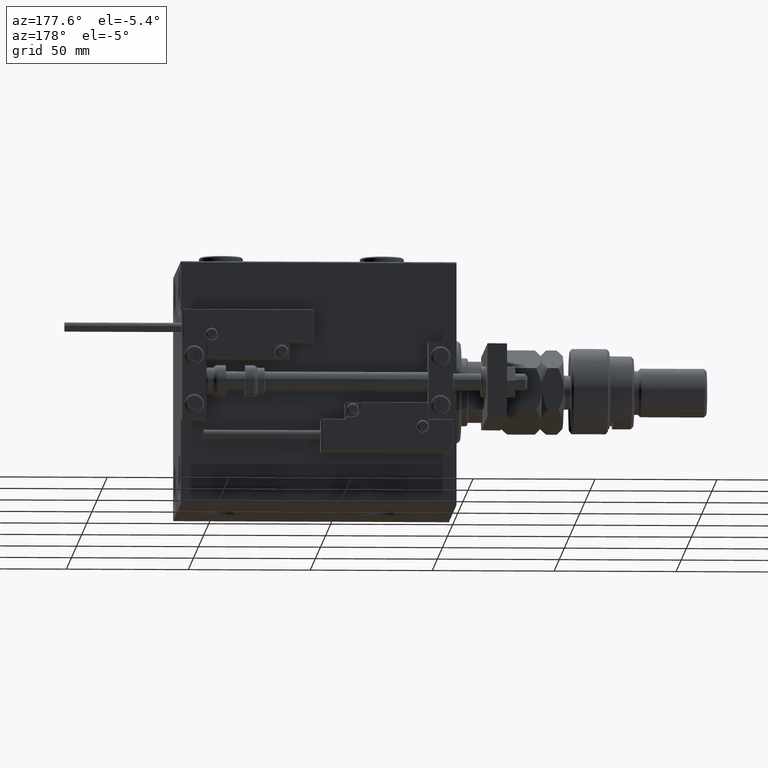
[diagram: clean part render]
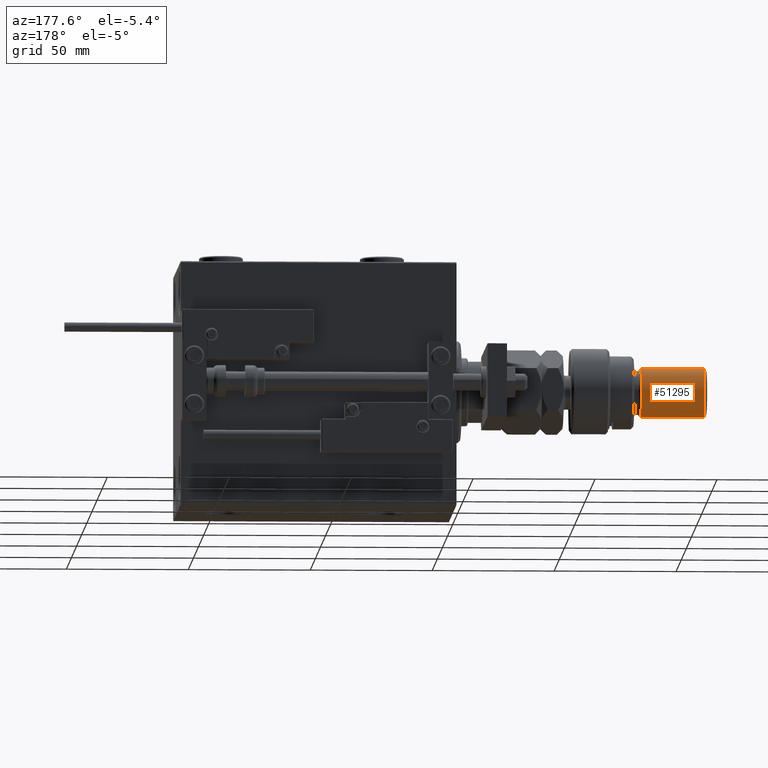
[diagram: same view with one face highlighted and labeled with its STEP entity id]
A machine part, auxiliary view. The second image highlights one B-rep face of the part: STEP entity #51295.
In plain terms, the highlighted cylindrical surface (edge-blend (fillet) strip) has radius 10 mm, axis along (1, -0, -0).
Its self-contained STEP definition (entity closure, byte-faithful):
#2074 = EDGE_CURVE ( 'NONE', #4278, #51081, #43753, .T. ) ;
#3403 = FACE_OUTER_BOUND ( 'NONE', #25336, .T. ) ;
#4278 = VERTEX_POINT ( 'NONE', #34699 ) ;
#4338 = LINE ( 'NONE', #16215, #25374 ) ;
#4911 = EDGE_CURVE ( 'NONE', #7088, #51081, #4338, .T. ) ;
#5986 = CARTESIAN_POINT ( 'NONE',  ( 0.000000000000000000, 0.000000000000000000, 56.00000000000000711 ) ) ;
#7088 = VERTEX_POINT ( 'NONE', #32708 ) ;
#8337 = CARTESIAN_POINT ( 'NONE',  ( 10.00000000000000000, 1.224646799147353256E-15, 54.99999999999998579 ) ) ;
#11679 = DIRECTION ( 'NONE',  ( -0.000000000000000000, -0.000000000000000000, -1.000000000000000000 ) ) ;
#12603 = CARTESIAN_POINT ( 'NONE',  ( -10.00000000000000000, 0.000000000000000000, 29.00000000000000711 ) ) ;
#16042 = LINE ( 'NONE', #41649, #18370 ) ;
#16215 = CARTESIAN_POINT ( 'NONE',  ( -10.00000000000000000, 0.000000000000000000, 56.00000000000000711 ) ) ;
#16744 = ORIENTED_EDGE ( 'NONE', *, *, #2074, .T. ) ;
#17647 = CARTESIAN_POINT ( 'NONE',  ( 0.000000000000000000, 0.000000000000000000, 29.00000000000000711 ) ) ;
#18370 = VECTOR ( 'NONE', #20430, 1000.000000000000000 ) ;
#19088 = AXIS2_PLACEMENT_3D ( 'NONE', #17647, #26199, #43001 ) ;
#20430 = DIRECTION ( 'NONE',  ( -0.000000000000000000, -0.000000000000000000, -1.000000000000000000 ) ) ;
#22010 = DIRECTION ( 'NONE',  ( 0.000000000000000000, 0.000000000000000000, -1.000000000000000000 ) ) ;
#24612 = AXIS2_PLACEMENT_3D ( 'NONE', #52052, #22010, #38818 ) ;
#25336 = EDGE_LOOP ( 'NONE', ( #31151, #34380, #16744, #29497 ) ) ;
#25374 = VECTOR ( 'NONE', #42086, 1000.000000000000000 ) ;
#26199 = DIRECTION ( 'NONE',  ( -0.000000000000000000, -0.000000000000000000, 1.000000000000000000 ) ) ;
#29497 = ORIENTED_EDGE ( 'NONE', *, *, #4911, .F. ) ;
#30757 = CIRCLE ( 'NONE', #24612, 10.00000000000000000 ) ;
#31151 = ORIENTED_EDGE ( 'NONE', *, *, #39011, .T. ) ;
#32708 = CARTESIAN_POINT ( 'NONE',  ( -10.00000000000000000, 0.000000000000000000, 54.99999999999998579 ) ) ;
#32807 = EDGE_CURVE ( 'NONE', #43520, #4278, #16042, .T. ) ;
#32872 = CYLINDRICAL_SURFACE ( 'NONE', #43449, 10.00000000000000000 ) ;
#34380 = ORIENTED_EDGE ( 'NONE', *, *, #32807, .T. ) ;
#34699 = CARTESIAN_POINT ( 'NONE',  ( 10.00000000000000000, 1.224646799147353256E-15, 29.00000000000000711 ) ) ;
#38818 = DIRECTION ( 'NONE',  ( 1.000000000000000000, 0.000000000000000000, 0.000000000000000000 ) ) ;
#39011 = EDGE_CURVE ( 'NONE', #7088, #43520, #30757, .T. ) ;
#41649 = CARTESIAN_POINT ( 'NONE',  ( 10.00000000000000000, 1.224646799147353256E-15, 56.00000000000000711 ) ) ;
#42086 = DIRECTION ( 'NONE',  ( -0.000000000000000000, -0.000000000000000000, -1.000000000000000000 ) ) ;
#43001 = DIRECTION ( 'NONE',  ( 1.000000000000000000, 0.000000000000000000, 0.000000000000000000 ) ) ;
#43449 = AXIS2_PLACEMENT_3D ( 'NONE', #5986, #11679, #49411 ) ;
#43520 = VERTEX_POINT ( 'NONE', #8337 ) ;
#43753 = CIRCLE ( 'NONE', #19088, 10.00000000000000000 ) ;
#49411 = DIRECTION ( 'NONE',  ( -1.000000000000000000, 0.000000000000000000, 0.000000000000000000 ) ) ;
#51081 = VERTEX_POINT ( 'NONE', #12603 ) ;
#51295 = ADVANCED_FACE ( 'NONE', ( #3403 ), #32872, .T. ) ;
#52052 = CARTESIAN_POINT ( 'NONE',  ( 0.000000000000000000, 0.000000000000000000, 54.99999999999998579 ) ) ;